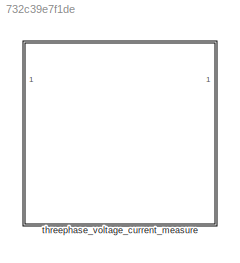
MODEL slx_732c39e7f1de
KIND library
CONFIG AbsTol = auto
CONFIG EnableMultiTasking = off
CONFIG FixedStep = auto
CONFIG MaxStep = auto
CONFIG MinStep = auto
CONFIG RelTol = 1e-3
CONFIG SampleTimeConstraint = Unconstrained
CONFIG SolverName = VariableStepAuto
CONFIG StartTime = 0.0
CONFIG StopTime = 10.0
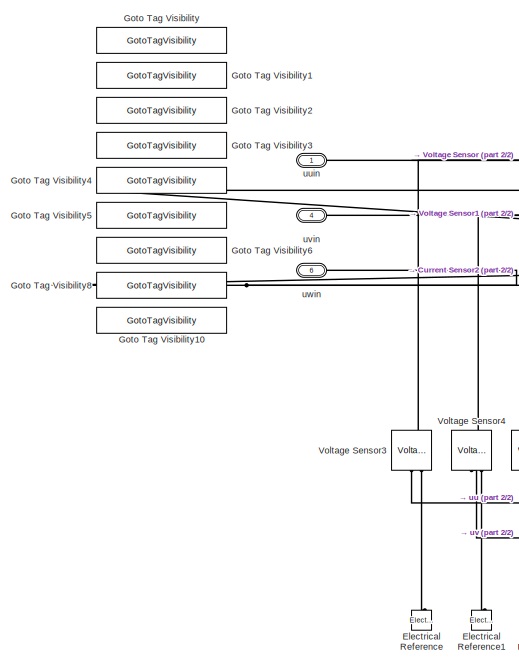
[diagram: threephase_voltage_current_measure - part 1/2, left side, full height]
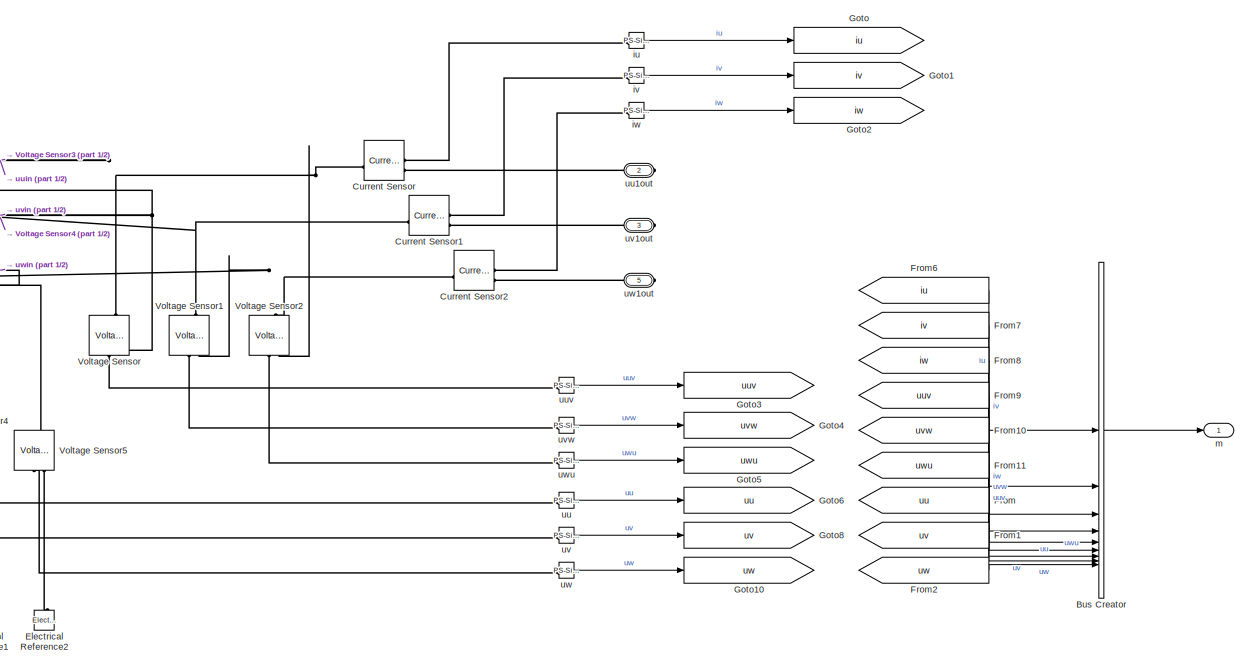
[diagram: threephase_voltage_current_measure - part 2/2, center side, full height]
BLOCK [SubSystem] threephase_voltage_current_measure
BLOCK [BusCreator] threephase_voltage_current_measure/Bus Creator
  DisplayOption = bar
  InheritFromInputs = on
  Inputs = 9
BLOCK [Reference] threephase_voltage_current_measure/Current Sensor  REF=fl_lib/Electrical/Electrical Sensors/Current Sensor
  SourceBlock = fl_lib/Electrical/Electrical Sensors/Current Sensor
  SourceType = Current Sensor
BLOCK [Reference] threephase_voltage_current_measure/Current Sensor1  REF=fl_lib/Electrical/Electrical Sensors/Current Sensor
  SourceBlock = fl_lib/Electrical/Electrical Sensors/Current Sensor
  SourceType = Current Sensor
BLOCK [Reference] threephase_voltage_current_measure/Current Sensor2  REF=fl_lib/Electrical/Electrical Sensors/Current Sensor
  SourceBlock = fl_lib/Electrical/Electrical Sensors/Current Sensor
  SourceType = Current Sensor
BLOCK [Reference] threephase_voltage_current_measure/Electrical Reference  REF=fl_lib/Electrical/Electrical Elements/Electrical Reference
  NameLocation = right
  SourceBlock = fl_lib/Electrical/Electrical Elements/Electrical Reference
  SourceType = Electrical Reference
BLOCK [Reference] threephase_voltage_current_measure/Electrical Reference1  REF=fl_lib/Electrical/Electrical Elements/Electrical Reference
  NameLocation = right
  SourceBlock = fl_lib/Electrical/Electrical Elements/Electrical Reference
  SourceType = Electrical Reference
BLOCK [Reference] threephase_voltage_current_measure/Electrical Reference2  REF=fl_lib/Electrical/Electrical Elements/Electrical Reference
  NameLocation = right
  SourceBlock = fl_lib/Electrical/Electrical Elements/Electrical Reference
  SourceType = Electrical Reference
BLOCK [From] threephase_voltage_current_measure/From
  GotoTag = uu
  TagVisibility = scoped
BLOCK [From] threephase_voltage_current_measure/From1
  GotoTag = uv
  TagVisibility = scoped
BLOCK [From] threephase_voltage_current_measure/From10
  GotoTag = uvw
  TagVisibility = scoped
BLOCK [From] threephase_voltage_current_measure/From11
  GotoTag = uwu
  TagVisibility = scoped
BLOCK [From] threephase_voltage_current_measure/From2
  GotoTag = uw
  TagVisibility = scoped
BLOCK [From] threephase_voltage_current_measure/From6
  GotoTag = iu
  TagVisibility = scoped
BLOCK [From] threephase_voltage_current_measure/From7
  GotoTag = iv
  TagVisibility = scoped
BLOCK [From] threephase_voltage_current_measure/From8
  GotoTag = iw
  TagVisibility = scoped
BLOCK [From] threephase_voltage_current_measure/From9
  GotoTag = uuv
  TagVisibility = scoped
BLOCK [Goto] threephase_voltage_current_measure/Goto
  GotoTag = iu
  TagVisibility = scoped
BLOCK [GotoTagVisibility] threephase_voltage_current_measure/Goto Tag Visibility
  GotoTag = iu
BLOCK [GotoTagVisibility] threephase_voltage_current_measure/Goto Tag Visibility1
  GotoTag = iv
BLOCK [GotoTagVisibility] threephase_voltage_current_measure/Goto Tag Visibility10
  GotoTag = uw
BLOCK [GotoTagVisibility] threephase_voltage_current_measure/Goto Tag Visibility2
  GotoTag = iw
BLOCK [GotoTagVisibility] threephase_voltage_current_measure/Goto Tag Visibility3
  GotoTag = uwu
BLOCK [GotoTagVisibility] threephase_voltage_current_measure/Goto Tag Visibility4
  GotoTag = uvw
BLOCK [GotoTagVisibility] threephase_voltage_current_measure/Goto Tag Visibility5
  GotoTag = uuv
BLOCK [GotoTagVisibility] threephase_voltage_current_measure/Goto Tag Visibility6
  GotoTag = uu
BLOCK [GotoTagVisibility] threephase_voltage_current_measure/Goto Tag Visibility8
  GotoTag = uv
BLOCK [Goto] threephase_voltage_current_measure/Goto1
  GotoTag = iv
  TagVisibility = scoped
BLOCK [Goto] threephase_voltage_current_measure/Goto10
  GotoTag = uw
  TagVisibility = scoped
BLOCK [Goto] threephase_voltage_current_measure/Goto2
  GotoTag = iw
  TagVisibility = scoped
BLOCK [Goto] threephase_voltage_current_measure/Goto3
  GotoTag = uuv
  TagVisibility = scoped
BLOCK [Goto] threephase_voltage_current_measure/Goto4
  GotoTag = uvw
  TagVisibility = scoped
BLOCK [Goto] threephase_voltage_current_measure/Goto5
  GotoTag = uwu
  TagVisibility = scoped
BLOCK [Goto] threephase_voltage_current_measure/Goto6
  GotoTag = uu
  TagVisibility = scoped
BLOCK [Goto] threephase_voltage_current_measure/Goto8
  GotoTag = uv
  TagVisibility = scoped
BLOCK [Reference] threephase_voltage_current_measure/Voltage Sensor  REF=fl_lib/Electrical/Electrical Sensors/Voltage Sensor
  NameLocation = right
  SourceBlock = fl_lib/Electrical/Electrical Sensors/Voltage Sensor
  SourceType = Voltage Sensor
BLOCK [Reference] threephase_voltage_current_measure/Voltage Sensor1  REF=fl_lib/Electrical/Electrical Sensors/Voltage Sensor
  NameLocation = right
  SourceBlock = fl_lib/Electrical/Electrical Sensors/Voltage Sensor
  SourceType = Voltage Sensor
BLOCK [Reference] threephase_voltage_current_measure/Voltage Sensor2  REF=fl_lib/Electrical/Electrical Sensors/Voltage Sensor
  NameLocation = right
  SourceBlock = fl_lib/Electrical/Electrical Sensors/Voltage Sensor
  SourceType = Voltage Sensor
BLOCK [Reference] threephase_voltage_current_measure/Voltage Sensor3  REF=fl_lib/Electrical/Electrical Sensors/Voltage Sensor
  NameLocation = right
  SourceBlock = fl_lib/Electrical/Electrical Sensors/Voltage Sensor
  SourceType = Voltage Sensor
BLOCK [Reference] threephase_voltage_current_measure/Voltage Sensor4  REF=fl_lib/Electrical/Electrical Sensors/Voltage Sensor
  NameLocation = right
  SourceBlock = fl_lib/Electrical/Electrical Sensors/Voltage Sensor
  SourceType = Voltage Sensor
BLOCK [Reference] threephase_voltage_current_measure/Voltage Sensor5  REF=fl_lib/Electrical/Electrical Sensors/Voltage Sensor
  NameLocation = right
  SourceBlock = fl_lib/Electrical/Electrical Sensors/Voltage Sensor
  SourceType = Voltage Sensor
BLOCK [Reference] threephase_voltage_current_measure/iu  REF=nesl_utility/PS-Simulink
Converter
  SourceBlock = nesl_utility/PS-Simulink\nConverter
  SourceType = PS-Simulink\nConverter
BLOCK [Reference] threephase_voltage_current_measure/iv  REF=nesl_utility/PS-Simulink
Converter
  SourceBlock = nesl_utility/PS-Simulink\nConverter
  SourceType = PS-Simulink\nConverter
BLOCK [Reference] threephase_voltage_current_measure/iw  REF=nesl_utility/PS-Simulink
Converter
  SourceBlock = nesl_utility/PS-Simulink\nConverter
  SourceType = PS-Simulink\nConverter
BLOCK [Outport] threephase_voltage_current_measure/m
BLOCK [Reference] threephase_voltage_current_measure/uu  REF=nesl_utility/PS-Simulink
Converter
  SourceBlock = nesl_utility/PS-Simulink\nConverter
  SourceType = PS-Simulink\nConverter
BLOCK [PMIOPort] threephase_voltage_current_measure/uu1out
  Port = 2
  Side = Right
BLOCK [PMIOPort] threephase_voltage_current_measure/uuin
  Side = Left
BLOCK [Reference] threephase_voltage_current_measure/uuv  REF=nesl_utility/PS-Simulink
Converter
  SourceBlock = nesl_utility/PS-Simulink\nConverter
  SourceType = PS-Simulink\nConverter
BLOCK [Reference] threephase_voltage_current_measure/uv  REF=nesl_utility/PS-Simulink
Converter
  SourceBlock = nesl_utility/PS-Simulink\nConverter
  SourceType = PS-Simulink\nConverter
BLOCK [PMIOPort] threephase_voltage_current_measure/uv1out
  Port = 3
  Side = Right
BLOCK [PMIOPort] threephase_voltage_current_measure/uvin
  Port = 4
  Side = Left
BLOCK [Reference] threephase_voltage_current_measure/uvw  REF=nesl_utility/PS-Simulink
Converter
  SourceBlock = nesl_utility/PS-Simulink\nConverter
  SourceType = PS-Simulink\nConverter
BLOCK [Reference] threephase_voltage_current_measure/uw  REF=nesl_utility/PS-Simulink
Converter
  SourceBlock = nesl_utility/PS-Simulink\nConverter
  SourceType = PS-Simulink\nConverter
BLOCK [PMIOPort] threephase_voltage_current_measure/uw1out
  Port = 5
  Side = Right
BLOCK [PMIOPort] threephase_voltage_current_measure/uwin
  Port = 6
  Side = Left
BLOCK [Reference] threephase_voltage_current_measure/uwu  REF=nesl_utility/PS-Simulink
Converter
  SourceBlock = nesl_utility/PS-Simulink\nConverter
  SourceType = PS-Simulink\nConverter
LINE threephase_voltage_current_measure/Bus Creator:1 -> threephase_voltage_current_measure/m:1
LINE threephase_voltage_current_measure/From10:1 -> threephase_voltage_current_measure/Bus Creator:5
LINE threephase_voltage_current_measure/From11:1 -> threephase_voltage_current_measure/Bus Creator:6
LINE threephase_voltage_current_measure/From1:1 -> threephase_voltage_current_measure/Bus Creator:8
LINE threephase_voltage_current_measure/From2:1 -> threephase_voltage_current_measure/Bus Creator:9
LINE threephase_voltage_current_measure/From6:1 -> threephase_voltage_current_measure/Bus Creator:1
LINE threephase_voltage_current_measure/From7:1 -> threephase_voltage_current_measure/Bus Creator:2
LINE threephase_voltage_current_measure/From8:1 -> threephase_voltage_current_measure/Bus Creator:3
LINE threephase_voltage_current_measure/From9:1 -> threephase_voltage_current_measure/Bus Creator:4
LINE threephase_voltage_current_measure/From:1 -> threephase_voltage_current_measure/Bus Creator:7
LINE threephase_voltage_current_measure/iu:1 -> threephase_voltage_current_measure/Goto:1
LINE threephase_voltage_current_measure/iv:1 -> threephase_voltage_current_measure/Goto1:1
LINE threephase_voltage_current_measure/iw:1 -> threephase_voltage_current_measure/Goto2:1
LINE threephase_voltage_current_measure/uu:1 -> threephase_voltage_current_measure/Goto6:1
LINE threephase_voltage_current_measure/uuv:1 -> threephase_voltage_current_measure/Goto3:1
LINE threephase_voltage_current_measure/uv:1 -> threephase_voltage_current_measure/Goto8:1
LINE threephase_voltage_current_measure/uvw:1 -> threephase_voltage_current_measure/Goto4:1
LINE threephase_voltage_current_measure/uw:1 -> threephase_voltage_current_measure/Goto10:1
LINE threephase_voltage_current_measure/uwu:1 -> threephase_voltage_current_measure/Goto5:1
PNET net1: threephase_voltage_current_measure/Current Sensor1:LConn1 -- threephase_voltage_current_measure/Voltage Sensor1:LConn1 -- threephase_voltage_current_measure/Voltage Sensor4:LConn1 -- threephase_voltage_current_measure/Voltage Sensor:RConn2 -- threephase_voltage_current_measure/uvin:RConn1
PLINE threephase_voltage_current_measure/Current Sensor1:RConn1 -- threephase_voltage_current_measure/iv:LConn1
PLINE threephase_voltage_current_measure/Current Sensor1:RConn2 -- threephase_voltage_current_measure/uv1out:RConn1
PNET net2: threephase_voltage_current_measure/Current Sensor2:LConn1 -- threephase_voltage_current_measure/Voltage Sensor1:RConn2 -- threephase_voltage_current_measure/Voltage Sensor2:LConn1 -- threephase_voltage_current_measure/Voltage Sensor5:LConn1 -- threephase_voltage_current_measure/uwin:RConn1
PLINE threephase_voltage_current_measure/Current Sensor2:RConn1 -- threephase_voltage_current_measure/iw:LConn1
PLINE threephase_voltage_current_measure/Current Sensor2:RConn2 -- threephase_voltage_current_measure/uw1out:RConn1
PNET net3: threephase_voltage_current_measure/Current Sensor:LConn1 -- threephase_voltage_current_measure/Voltage Sensor2:RConn2 -- threephase_voltage_current_measure/Voltage Sensor3:LConn1 -- threephase_voltage_current_measure/Voltage Sensor:LConn1 -- threephase_voltage_current_measure/uuin:RConn1
PLINE threephase_voltage_current_measure/Current Sensor:RConn1 -- threephase_voltage_current_measure/iu:LConn1
PLINE threephase_voltage_current_measure/Current Sensor:RConn2 -- threephase_voltage_current_measure/uu1out:RConn1
PLINE threephase_voltage_current_measure/Electrical Reference1:LConn1 -- threephase_voltage_current_measure/Voltage Sensor4:RConn2
PLINE threephase_voltage_current_measure/Electrical Reference2:LConn1 -- threephase_voltage_current_measure/Voltage Sensor5:RConn2
PLINE threephase_voltage_current_measure/Electrical Reference:LConn1 -- threephase_voltage_current_measure/Voltage Sensor3:RConn2
PLINE threephase_voltage_current_measure/Voltage Sensor1:RConn1 -- threephase_voltage_current_measure/uvw:LConn1
PLINE threephase_voltage_current_measure/Voltage Sensor2:RConn1 -- threephase_voltage_current_measure/uwu:LConn1
PLINE threephase_voltage_current_measure/Voltage Sensor3:RConn1 -- threephase_voltage_current_measure/uu:LConn1
PLINE threephase_voltage_current_measure/Voltage Sensor4:RConn1 -- threephase_voltage_current_measure/uv:LConn1
PLINE threephase_voltage_current_measure/Voltage Sensor5:RConn1 -- threephase_voltage_current_measure/uw:LConn1
PLINE threephase_voltage_current_measure/Voltage Sensor:RConn1 -- threephase_voltage_current_measure/uuv:LConn1
note: PNET lines group multi-terminal physical nets as a canonical sorted terminal list (undirected conserving connections); 2-terminal nets keep the pairwise PLINE form
